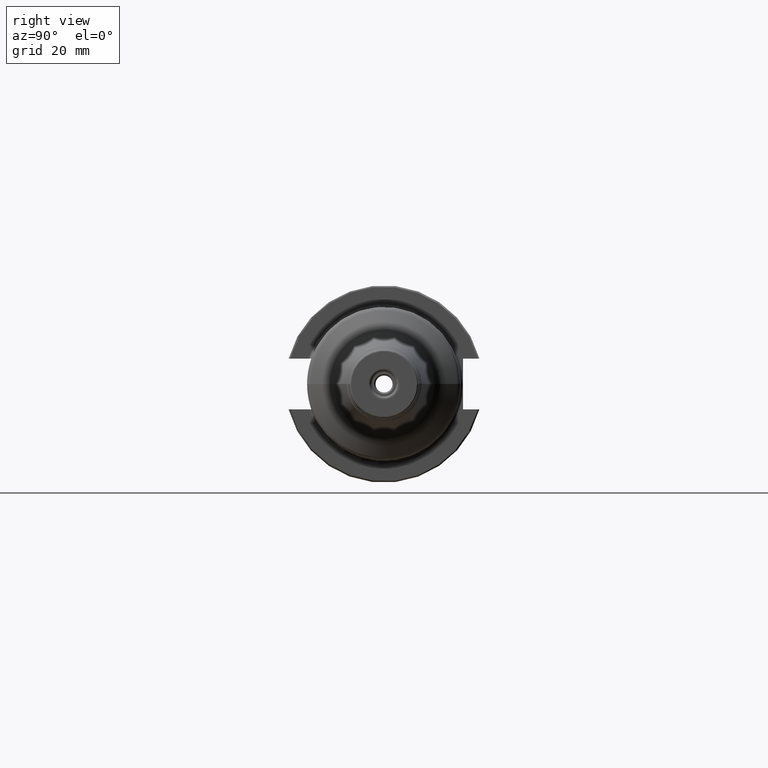
[diagram: clean part render]
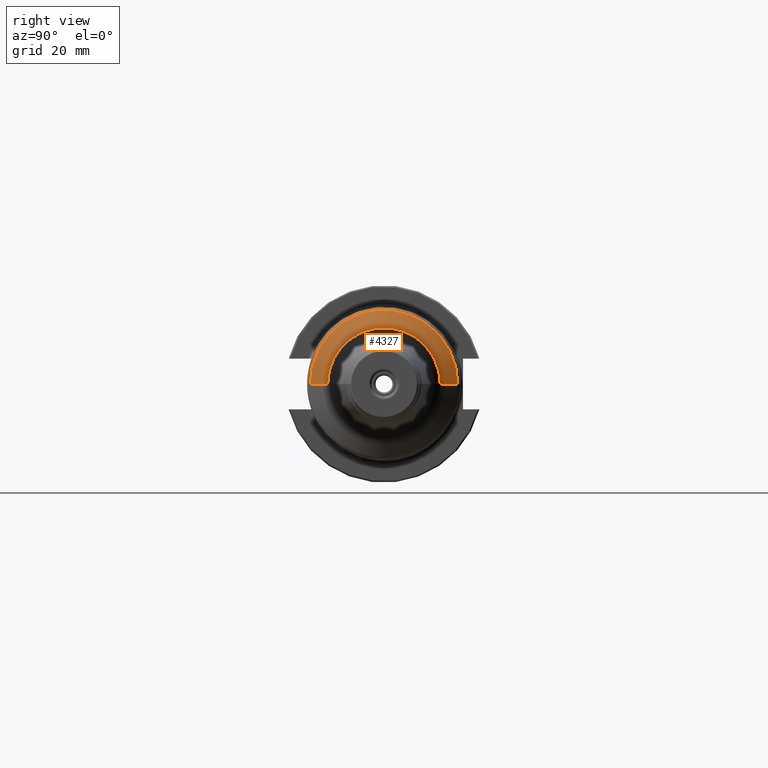
[diagram: same view with one face highlighted and labeled with its STEP entity id]
A machine part, right view. The second image highlights one B-rep face of the part: STEP entity #4327.
In plain terms, the highlighted conical surface has half-angle 60 deg.
Its self-contained STEP definition (entity closure, byte-faithful):
#1621=CARTESIAN_POINT('',(1.926377977578E0,0.E0,0.E0));
#1622=DIRECTION('',(1.E0,0.E0,0.E0));
#1623=DIRECTION('',(0.E0,1.E0,0.E0));
#1624=AXIS2_PLACEMENT_3D('',#1621,#1622,#1623);
#1626=CARTESIAN_POINT('',(1.798583190243E0,0.E0,0.E0));
#1627=DIRECTION('',(-1.E0,0.E0,0.E0));
#1628=DIRECTION('',(0.E0,-1.E0,0.E0));
#1629=AXIS2_PLACEMENT_3D('',#1626,#1627,#1628);
#1631=DIRECTION('',(-5.E-1,8.660254037844E-1,3.474504100953E-11));
#1632=VECTOR('',#1631,2.555895746683E-1);
#1633=CARTESIAN_POINT('',(1.926377977578E0,7.131529353929E-1,
-3.435980163346E-14));
#1634=LINE('',#1633,#1632);
#1640=DIRECTION('',(-5.E-1,-8.660254037844E-1,-3.474511113835E-11));
#1641=VECTOR('',#1640,2.555895746683E-1);
#1642=CARTESIAN_POINT('',(1.926377977578E0,-7.131529353929E-1,
3.433870667593E-14));
#1643=LINE('',#1642,#1641);
#2578=CARTESIAN_POINT('',(1.798583190243E0,9.345E-1,0.E0));
#2579=CARTESIAN_POINT('',(1.798583190243E0,-9.345E-1,0.E0));
#2580=VERTEX_POINT('',#2578);
#2581=VERTEX_POINT('',#2579);
#2582=CARTESIAN_POINT('',(1.926377977578E0,7.131529353929E-1,
-3.435980163346E-14));
#2583=VERTEX_POINT('',#2582);
#2584=CARTESIAN_POINT('',(1.926377977578E0,-7.131529353929E-1,
3.433870667593E-14));
#2585=VERTEX_POINT('',#2584);
#4314=CARTESIAN_POINT('',(1.862480583911E0,0.E0,0.E0));
#4315=DIRECTION('',(-1.E0,0.E0,0.E0));
#4316=DIRECTION('',(0.E0,1.E0,0.E0));
#4317=AXIS2_PLACEMENT_3D('',#4314,#4315,#4316);
#4318=CONICAL_SURFACE('',#4317,8.238264676965E-1,6.E1);
#4320=ORIENTED_EDGE('',*,*,#4319,.F.);
#4321=ORIENTED_EDGE('',*,*,#4304,.T.);
#4323=ORIENTED_EDGE('',*,*,#4322,.T.);
#4324=ORIENTED_EDGE('',*,*,#2978,.T.);
#4325=EDGE_LOOP('',(#4320,#4321,#4323,#4324));
#4326=FACE_OUTER_BOUND('',#4325,.F.);
#4327=ADVANCED_FACE('',(#4326),#4318,.T.);
#1625=CIRCLE('',#1624,7.131529353929E-1);
#1630=CIRCLE('',#1629,9.345E-1);
#2978=EDGE_CURVE('',#2581,#2580,#1630,.T.);
#4304=EDGE_CURVE('',#2583,#2585,#1625,.T.);
#4319=EDGE_CURVE('',#2583,#2580,#1634,.T.);
#4322=EDGE_CURVE('',#2585,#2581,#1643,.T.);